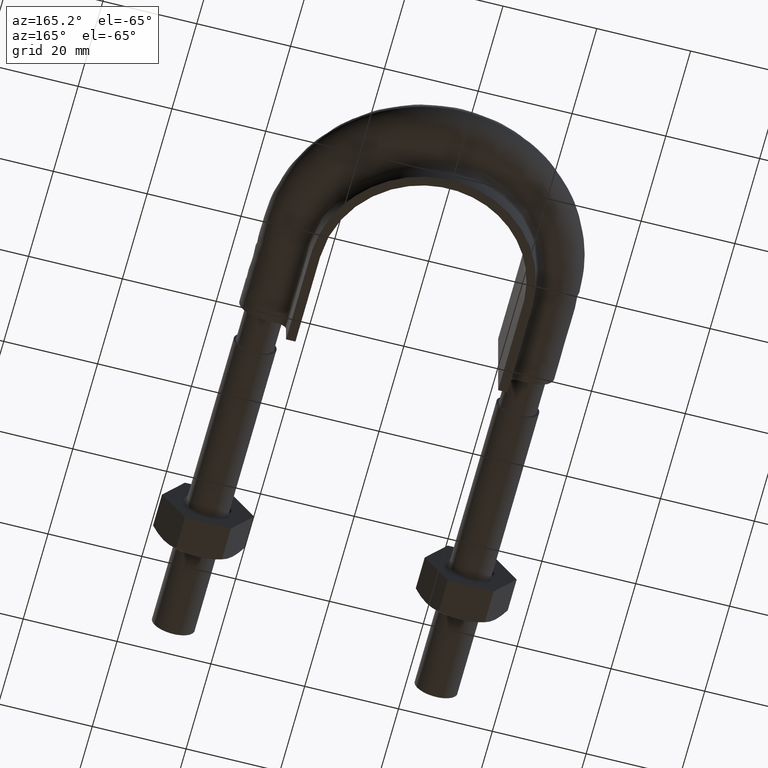
[diagram: clean part render]
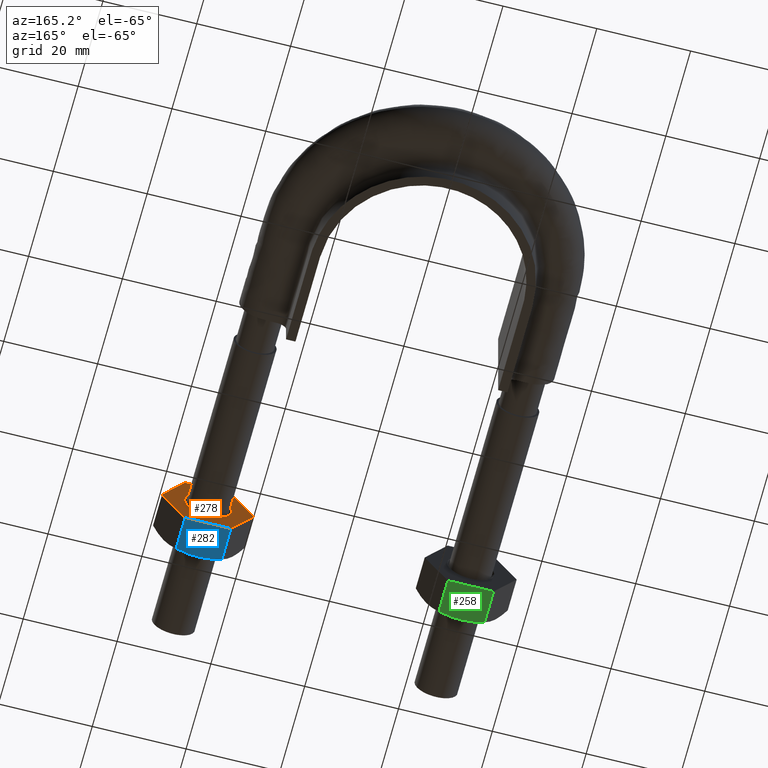
[diagram: same view with three faces highlighted in distinct colors, each labeled with its STEP entity id]
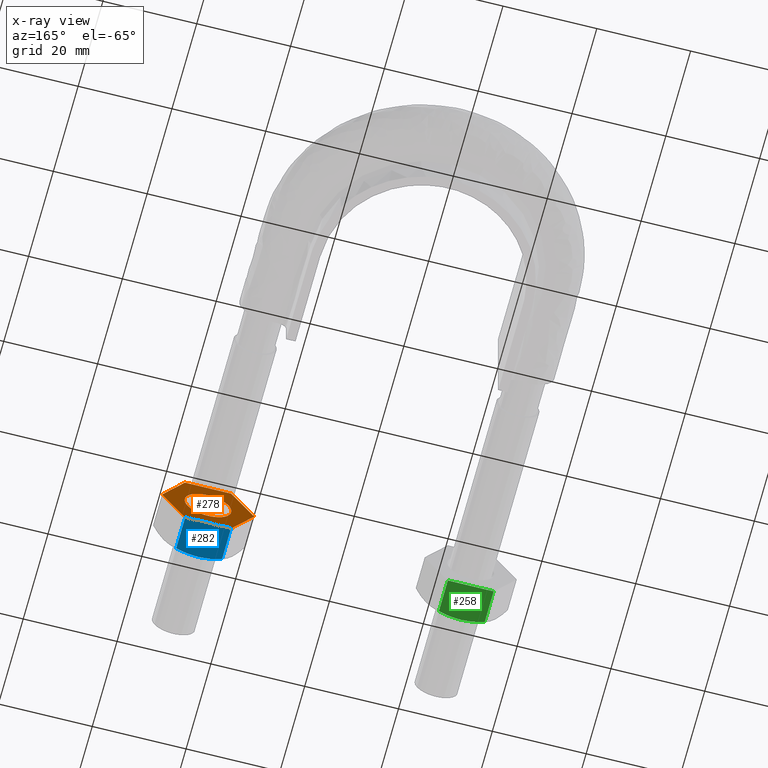
[diagram: x-ray of the same camera — body ghosted, the three highlighted faces saturated]
A machine part, auxiliary view with three faces highlighted in distinct colors.
The next image is the same camera in x-ray (body ghosted, the three faces saturated) — at least one of them is partly hidden behind the body in this view.
Their STEP definitions:

[orange] entity #278 — the highlighted planar face has unit normal (-0, -1, -0).
#278 = ADVANCED_FACE( '', ( #430, #431 ), #432, .F. );
#430 = FACE_OUTER_BOUND( '', #1427, .T. );
#431 = FACE_BOUND( '', #1428, .T. );
#432 = PLANE( '', #1429 );
#1427 = EDGE_LOOP( '', ( #1872, #1873, #1874, #1875, #1876, #1877, #1878, #1879, #1880, #1881, #1882, #1883 ) );
#1428 = EDGE_LOOP( '', ( #1884 ) );
#1429 = AXIS2_PLACEMENT_3D( '', #1885, #1886, #1887 );
#1872 = ORIENTED_EDGE( '', *, *, #2124, .T. );
#1873 = ORIENTED_EDGE( '', *, *, #2125, .T. );
#1874 = ORIENTED_EDGE( '', *, *, #2126, .T. );
#1875 = ORIENTED_EDGE( '', *, *, #2127, .T. );
#1876 = ORIENTED_EDGE( '', *, *, #2128, .T. );
#1877 = ORIENTED_EDGE( '', *, *, #2118, .T. );
#1878 = ORIENTED_EDGE( '', *, *, #2114, .T. );
#1879 = ORIENTED_EDGE( '', *, *, #2129, .T. );
#1880 = ORIENTED_EDGE( '', *, *, #2130, .T. );
#1881 = ORIENTED_EDGE( '', *, *, #2110, .T. );
#1882 = ORIENTED_EDGE( '', *, *, #2131, .T. );
#1883 = ORIENTED_EDGE( '', *, *, #2132, .T. );
#1884 = ORIENTED_EDGE( '', *, *, #2122, .F. );
#1885 = CARTESIAN_POINT( '', ( 32.8999999999998, 27.9999999999984, 8.48704895708538 ) );
#1886 = DIRECTION( '', ( -2.44921270764475E-016, -1.00000000000000, -6.12303176911189E-017 ) );
#1887 = DIRECTION( '', ( -1.00000000000000, 2.44921270764475E-016, 0.000000000000000 ) );
#2110 = EDGE_CURVE( '', #2334, #2332, #2335, .T. );
#2114 = EDGE_CURVE( '', #2342, #2340, #2343, .F. );
#2118 = EDGE_CURVE( '', #2349, #2342, #2350, .T. );
#2122 = EDGE_CURVE( '', #2355, #2355, #2356, .F. );
#2124 = EDGE_CURVE( '', #2359, #2360, #2361, .F. );
#2125 = EDGE_CURVE( '', #2360, #2362, #2363, .T. );
#2126 = EDGE_CURVE( '', #2362, #2364, #2365, .F. );
#2127 = EDGE_CURVE( '', #2364, #2366, #2367, .T. );
#2128 = EDGE_CURVE( '', #2366, #2349, #2368, .F. );
#2129 = EDGE_CURVE( '', #2340, #2369, #2370, .T. );
#2130 = EDGE_CURVE( '', #2369, #2334, #2371, .F. );
#2131 = EDGE_CURVE( '', #2332, #2372, #2373, .F. );
#2132 = EDGE_CURVE( '', #2372, #2359, #2374, .T. );
#2332 = VERTEX_POINT( '', #2923 );
#2334 = VERTEX_POINT( '', #2926 );
#2335 = LINE( '', #2927, #2928 );
#2340 = VERTEX_POINT( '', #2934 );
#2342 = VERTEX_POINT( '', #2937 );
#2343 = CIRCLE( '', #2938, 9.80000000000000 );
#2349 = VERTEX_POINT( '', #2955 );
#2350 = LINE( '', #2956, #2957 );
#2355 = VERTEX_POINT( '', #2968 );
#2356 = CIRCLE( '', #2969, 4.99999999999980 );
#2359 = VERTEX_POINT( '', #2972 );
#2360 = VERTEX_POINT( '', #2973 );
#2361 = CIRCLE( '', #2974, 9.80000000000000 );
#2362 = VERTEX_POINT( '', #2975 );
#2363 = LINE( '', #2976, #2977 );
#2364 = VERTEX_POINT( '', #2978 );
#2365 = CIRCLE( '', #2979, 9.80000000000000 );
#2366 = VERTEX_POINT( '', #2980 );
#2367 = LINE( '', #2981, #2982 );
#2368 = CIRCLE( '', #2983, 9.80000000000000 );
#2369 = VERTEX_POINT( '', #2984 );
#2370 = LINE( '', #2985, #2986 );
#2371 = CIRCLE( '', #2987, 9.80000000000000 );
#2372 = VERTEX_POINT( '', #2988 );
#2373 = CIRCLE( '', #2989, 9.80000000000000 );
#2374 = LINE( '', #2990, #2991 );
#2923 = CARTESIAN_POINT( '', ( 32.8774993593036, 27.9999999999984, 8.49999999999958 ) );
#2926 = CARTESIAN_POINT( '', ( 23.1225006406964, 27.9999999999984, 8.49999999999958 ) );
#2927 = CARTESIAN_POINT( '', ( 32.8999999999998, 27.9999999999984, 8.49999999999958 ) );
#2928 = VECTOR( '', #3211, 1000.00000000000 );
#2934 = CARTESIAN_POINT( '', ( 18.2000343881808, 27.9999999999984, 0.0259616479021500 ) );
#2937 = CARTESIAN_POINT( '', ( 18.2000343881808, 27.9999999999984, -0.0259616478954603 ) );
#2938 = AXIS2_PLACEMENT_3D( '', #3217, #3218, #3219 );
#2955 = CARTESIAN_POINT( '', ( 23.0775337474859, 27.9999999999984, -8.47403835209989 ) );
#2956 = CARTESIAN_POINT( '', ( 18.1887840678342, 27.9999999999984, -0.00647552145372973 ) );
#2957 = VECTOR( '', #3221, 1000.00000000000 );
#2968 = CARTESIAN_POINT( '', ( 32.9999999999998, 27.9999999999984, 1.97964474674123E-015 ) );
#2969 = AXIS2_PLACEMENT_3D( '', #3226, #3227, #3228 );
#2972 = CARTESIAN_POINT( '', ( 37.7999656118192, 27.9999999999984, 0.0259616478954763 ) );
#2973 = CARTESIAN_POINT( '', ( 37.7999656118192, 27.9999999999984, -0.0259616479023153 ) );
#2974 = AXIS2_PLACEMENT_3D( '', #3232, #3233, #3234 );
#2975 = CARTESIAN_POINT( '', ( 32.9224662525156, 27.9999999999984, -8.47403835209900 ) );
#2976 = CARTESIAN_POINT( '', ( 40.2612159321672, 27.9999999999984, 4.23704895708474 ) );
#2977 = VECTOR( '', #3235, 1000.00000000000 );
#2978 = CARTESIAN_POINT( '', ( 32.8774993593036, 27.9999999999984, -8.49999999999957 ) );
#2979 = AXIS2_PLACEMENT_3D( '', #3236, #3237, #3238 );
#2980 = CARTESIAN_POINT( '', ( 23.1225006406964, 27.9999999999984, -8.49999999999957 ) );
#2981 = CARTESIAN_POINT( '', ( 32.8999999999998, 27.9999999999984, -8.49999999999957 ) );
#2982 = VECTOR( '', #3239, 1000.00000000000 );
#2983 = AXIS2_PLACEMENT_3D( '', #3240, #3241, #3242 );
#2984 = CARTESIAN_POINT( '', ( 23.0775337474845, 27.9999999999984, 8.47403835209908 ) );
#2985 = CARTESIAN_POINT( '', ( 25.5387840678324, 27.9999999999984, 12.7370489570860 ) );
#2986 = VECTOR( '', #3243, 1000.00000000000 );
#2987 = AXIS2_PLACEMENT_3D( '', #3244, #3245, #3246 );
#2988 = CARTESIAN_POINT( '', ( 32.9224662525141, 27.9999999999984, 8.47403835209988 ) );
#2989 = AXIS2_PLACEMENT_3D( '', #3247, #3248, #3249 );
#2990 = CARTESIAN_POINT( '', ( 32.9112159321675, 27.9999999999984, 8.49352447854162 ) );
#2991 = VECTOR( '', #3250, 1000.00000000000 );
#3211 = DIRECTION( '', ( 1.00000000000000, -2.44921270764475E-016, -5.70504206655789E-027 ) );
#3217 = CARTESIAN_POINT( '', ( 28.0000000000000, 27.9999999999984, 1.97964474674123E-015 ) );
#3218 = DIRECTION( '', ( -2.44921270764475E-016, -1.00000000000000, -6.12303176911189E-017 ) );
#3219 = DIRECTION( '', ( 1.00000000000000, -2.44921270764475E-016, 0.000000000000000 ) );
#3221 = DIRECTION( '', ( -0.499999999999850, 6.94336247798948E-017, 0.866025403784525 ) );
#3226 = CARTESIAN_POINT( '', ( 28.0000000000000, 27.9999999999984, 1.97964474674123E-015 ) );
#3227 = DIRECTION( '', ( -2.44921270764475E-016, -1.00000000000000, -6.12303176911189E-017 ) );
#3228 = DIRECTION( '', ( 1.00000000000000, -2.44921270764475E-016, 0.000000000000000 ) );
#3232 = CARTESIAN_POINT( '', ( 28.0000000000000, 27.9999999999984, 1.97964474674123E-015 ) );
#3233 = DIRECTION( '', ( -2.44921270764475E-016, -1.00000000000000, -6.12303176911189E-017 ) );
#3234 = DIRECTION( '', ( 1.00000000000000, -2.44921270764475E-016, 0.000000000000000 ) );
#3235 = DIRECTION( '', ( -0.500000000000075, 1.75487645984554E-016, -0.866025403784396 ) );
#3236 = CARTESIAN_POINT( '', ( 28.0000000000000, 27.9999999999984, 1.97964474674123E-015 ) );
#3237 = DIRECTION( '', ( -2.44921270764475E-016, -1.00000000000000, -6.12303176911189E-017 ) );
#3238 = DIRECTION( '', ( 1.00000000000000, -2.44921270764475E-016, 0.000000000000000 ) );
#3239 = DIRECTION( '', ( -1.00000000000000, 2.44921270764475E-016, 1.49966072178720E-032 ) );
#3240 = CARTESIAN_POINT( '', ( 28.0000000000000, 27.9999999999984, 1.97964474674123E-015 ) );
#3241 = DIRECTION( '', ( -2.44921270764475E-016, -1.00000000000000, -6.12303176911189E-017 ) );
#3242 = DIRECTION( '', ( 1.00000000000000, -2.44921270764475E-016, 0.000000000000000 ) );
#3243 = DIRECTION( '', ( 0.500000000000075, -1.75487645984554E-016, 0.866025403784396 ) );
#3244 = CARTESIAN_POINT( '', ( 28.0000000000000, 27.9999999999984, 1.97964474674123E-015 ) );
#3245 = DIRECTION( '', ( -2.44921270764475E-016, -1.00000000000000, -6.12303176911189E-017 ) );
#3246 = DIRECTION( '', ( 1.00000000000000, -2.44921270764475E-016, 0.000000000000000 ) );
#3247 = CARTESIAN_POINT( '', ( 28.0000000000000, 27.9999999999984, 1.97964474674123E-015 ) );
#3248 = DIRECTION( '', ( -2.44921270764475E-016, -1.00000000000000, -6.12303176911189E-017 ) );
#3249 = DIRECTION( '', ( 1.00000000000000, -2.44921270764475E-016, 0.000000000000000 ) );
#3250 = DIRECTION( '', ( 0.499999999999850, -6.94336247798948E-017, -0.866025403784525 ) );

[blue] entity #282 — the highlighted planar face has unit normal (-0, -0, 1).
#282 = ADVANCED_FACE( '', ( #439 ), #440, .F. );
#439 = FACE_OUTER_BOUND( '', #1436, .T. );
#440 = PLANE( '', #1437 );
#1436 = EDGE_LOOP( '', ( #1909, #1910, #1911, #1912, #1913 ) );
#1437 = AXIS2_PLACEMENT_3D( '', #1914, #1915, #1916 );
#1909 = ORIENTED_EDGE( '', *, *, #2106, .F. );
#1910 = ORIENTED_EDGE( '', *, *, #2138, .F. );
#1911 = ORIENTED_EDGE( '', *, *, #2142, .F. );
#1912 = ORIENTED_EDGE( '', *, *, #2127, .F. );
#1913 = ORIENTED_EDGE( '', *, *, #2143, .F. );
#1914 = CARTESIAN_POINT( '', ( 32.9074772881116, 27.9999999999984, -8.49999999999957 ) );
#1915 = DIRECTION( '', ( -3.49320619929513E-043, -6.12303176911189E-017, 1.00000000000000 ) );
#1916 = DIRECTION( '', ( 1.00000000000000, -5.70502706995067E-027, 3.98272977783113E-059 ) );
#2106 = EDGE_CURVE( '', #2324, #2320, #2326, .T. );
#2127 = EDGE_CURVE( '', #2364, #2366, #2367, .T. );
#2138 = EDGE_CURVE( '', #2381, #2324, #2383, .T. );
#2142 = EDGE_CURVE( '', #2366, #2381, #2389, .T. );
#2143 = EDGE_CURVE( '', #2320, #2364, #2390, .F. );
#2320 = VERTEX_POINT( '', #2891 );
#2324 = VERTEX_POINT( '', #2900 );
#2326 = B_SPLINE_CURVE_WITH_KNOTS( '', 3, ( #2902, #2903, #2904, #2905, #2906, #2907 ), .UNSPECIFIED., .F., .F., ( 4, 2, 4 ), ( 1.76907777093865E-017, 0.00246745482903619, 0.00493490965807237 ), .UNSPECIFIED. );
#2364 = VERTEX_POINT( '', #2978 );
#2366 = VERTEX_POINT( '', #2980 );
#2367 = LINE( '', #2981, #2982 );
#2381 = VERTEX_POINT( '', #3000 );
#2383 = B_SPLINE_CURVE_WITH_KNOTS( '', 3, ( #3002, #3003, #3004, #3005, #3006, #3007 ), .UNSPECIFIED., .F., .F., ( 4, 2, 4 ), ( 5.05397327727756E-016, 0.00246745482903618, 0.00493490965807186 ), .UNSPECIFIED. );
#2389 = LINE( '', #3018, #3019 );
#2390 = LINE( '', #3020, #3021 );
#2891 = CARTESIAN_POINT( '', ( 32.8774993593031, 20.7505553499464, -8.49999999999957 ) );
#2900 = CARTESIAN_POINT( '', ( 28.0000000000000, 19.9999999999999, -8.49999999999979 ) );
#2902 = CARTESIAN_POINT( '', ( 28.0000000000000, 19.9999999999998, -8.49999999999957 ) );
#2903 = CARTESIAN_POINT( '', ( 28.8321659501908, 19.9999999999998, -8.49999999999957 ) );
#2904 = CARTESIAN_POINT( '', ( 29.6533062476858, 20.0716504305288, -8.49999999999957 ) );
#2905 = CARTESIAN_POINT( '', ( 31.2774431756630, 20.3328582843704, -8.49999999999957 ) );
#2906 = CARTESIAN_POINT( '', ( 32.0805717066770, 20.5215585493654, -8.49999999999957 ) );
#2907 = CARTESIAN_POINT( '', ( 32.8774993593026, 20.7505553499462, -8.49999999999957 ) );
#2978 = CARTESIAN_POINT( '', ( 32.8774993593036, 27.9999999999984, -8.49999999999957 ) );
#2980 = CARTESIAN_POINT( '', ( 23.1225006406964, 27.9999999999984, -8.49999999999957 ) );
#2981 = CARTESIAN_POINT( '', ( 32.8999999999998, 27.9999999999984, -8.49999999999957 ) );
#2982 = VECTOR( '', #3239, 1000.00000000000 );
#3000 = CARTESIAN_POINT( '', ( 23.1225006406969, 20.7505553499464, -8.49999999999957 ) );
#3002 = CARTESIAN_POINT( '', ( 23.1225006406974, 20.7505553499462, -8.49999999999957 ) );
#3003 = CARTESIAN_POINT( '', ( 23.9194282933229, 20.5215585493654, -8.49999999999957 ) );
#3004 = CARTESIAN_POINT( '', ( 24.7225568243376, 20.3328582843703, -8.49999999999957 ) );
#3005 = CARTESIAN_POINT( '', ( 26.3466937523146, 20.0716504305288, -8.49999999999957 ) );
#3006 = CARTESIAN_POINT( '', ( 27.1678340498094, 19.9999999999998, -8.49999999999957 ) );
#3007 = CARTESIAN_POINT( '', ( 28.0000000000000, 19.9999999999998, -8.49999999999957 ) );
#3018 = CARTESIAN_POINT( '', ( 23.1225006406964, 27.9999999999984, -8.49999999999957 ) );
#3019 = VECTOR( '', #3268, 1000.00000000000 );
#3020 = CARTESIAN_POINT( '', ( 32.8774993593036, 27.9999999999984, -8.49999999999957 ) );
#3021 = VECTOR( '', #3269, 1000.00000000000 );
#3239 = DIRECTION( '', ( -1.00000000000000, 2.44921270764475E-016, 1.49966072178720E-032 ) );
#3268 = DIRECTION( '', ( -2.44921270764476E-016, -1.00000000000000, -6.12303176911191E-017 ) );
#3269 = DIRECTION( '', ( -2.44921270764476E-016, -1.00000000000000, -6.12303176911191E-017 ) );

[green] entity #258 — the highlighted planar face has unit normal (-0, -0, 1).
#258 = ADVANCED_FACE( '', ( #386 ), #387, .F. );
#386 = FACE_OUTER_BOUND( '', #1383, .T. );
#387 = PLANE( '', #1384 );
#1383 = EDGE_LOOP( '', ( #1728, #1729, #1730, #1731, #1732 ) );
#1384 = AXIS2_PLACEMENT_3D( '', #1733, #1734, #1735 );
#1728 = ORIENTED_EDGE( '', *, *, #2054, .F. );
#1729 = ORIENTED_EDGE( '', *, *, #2082, .F. );
#1730 = ORIENTED_EDGE( '', *, *, #2087, .F. );
#1731 = ORIENTED_EDGE( '', *, *, #2070, .F. );
#1732 = ORIENTED_EDGE( '', *, *, #2088, .F. );
#1733 = CARTESIAN_POINT( '', ( -23.0925227118884, 27.9999999999984, -8.49999999999957 ) );
#1734 = DIRECTION( '', ( -3.49320619929513E-043, -6.12303176911189E-017, 1.00000000000000 ) );
#1735 = DIRECTION( '', ( 1.00000000000000, -5.70502706995067E-027, 3.98272977783113E-059 ) );
#2054 = EDGE_CURVE( '', #2238, #2234, #2240, .T. );
#2070 = EDGE_CURVE( '', #2268, #2270, #2271, .T. );
#2082 = EDGE_CURVE( '', #2288, #2238, #2290, .T. );
#2087 = EDGE_CURVE( '', #2270, #2288, #2299, .T. );
#2088 = EDGE_CURVE( '', #2234, #2268, #2300, .F. );
#2234 = VERTEX_POINT( '', #2727 );
#2238 = VERTEX_POINT( '', #2736 );
#2240 = B_SPLINE_CURVE_WITH_KNOTS( '', 3, ( #2738, #2739, #2740, #2741, #2742, #2743 ), .UNSPECIFIED., .F., .F., ( 4, 2, 4 ), ( 1.76907777093865E-017, 0.00246745482903620, 0.00493490965807238 ), .UNSPECIFIED. );
#2268 = VERTEX_POINT( '', #2791 );
#2270 = VERTEX_POINT( '', #2793 );
#2271 = LINE( '', #2794, #2795 );
#2288 = VERTEX_POINT( '', #2817 );
#2290 = B_SPLINE_CURVE_WITH_KNOTS( '', 3, ( #2819, #2820, #2821, #2822, #2823, #2824 ), .UNSPECIFIED., .F., .F., ( 4, 2, 4 ), ( 4.98539125167898E-016, 0.00246745482903618, 0.00493490965807185 ), .UNSPECIFIED. );
#2299 = LINE( '', #2843, #2844 );
#2300 = LINE( '', #2845, #2846 );
#2727 = CARTESIAN_POINT( '', ( -23.1225006406969, 20.7505553499464, -8.49999999999957 ) );
#2736 = CARTESIAN_POINT( '', ( -28.0000000000000, 19.9999999999999, -8.49999999999979 ) );
#2738 = CARTESIAN_POINT( '', ( -28.0000000000000, 19.9999999999998, -8.49999999999957 ) );
#2739 = CARTESIAN_POINT( '', ( -27.1678340498092, 19.9999999999998, -8.49999999999957 ) );
#2740 = CARTESIAN_POINT( '', ( -26.3466937523142, 20.0716504305288, -8.49999999999957 ) );
#2741 = CARTESIAN_POINT( '', ( -24.7225568243370, 20.3328582843705, -8.49999999999957 ) );
#2742 = CARTESIAN_POINT( '', ( -23.9194282933230, 20.5215585493654, -8.49999999999957 ) );
#2743 = CARTESIAN_POINT( '', ( -23.1225006406974, 20.7505553499462, -8.49999999999957 ) );
#2791 = CARTESIAN_POINT( '', ( -23.1225006406964, 27.9999999999984, -8.49999999999957 ) );
#2793 = CARTESIAN_POINT( '', ( -32.8774993593036, 27.9999999999984, -8.49999999999957 ) );
#2794 = CARTESIAN_POINT( '', ( -23.1000000000002, 27.9999999999984, -8.49999999999957 ) );
#2795 = VECTOR( '', #3152, 1000.00000000000 );
#2817 = CARTESIAN_POINT( '', ( -32.8774993593031, 20.7505553499464, -8.49999999999957 ) );
#2819 = CARTESIAN_POINT( '', ( -32.8774993593026, 20.7505553499462, -8.49999999999957 ) );
#2820 = CARTESIAN_POINT( '', ( -32.0805717066771, 20.5215585493654, -8.49999999999957 ) );
#2821 = CARTESIAN_POINT( '', ( -31.2774431756624, 20.3328582843703, -8.49999999999957 ) );
#2822 = CARTESIAN_POINT( '', ( -29.6533062476854, 20.0716504305288, -8.49999999999957 ) );
#2823 = CARTESIAN_POINT( '', ( -28.8321659501906, 19.9999999999998, -8.49999999999957 ) );
#2824 = CARTESIAN_POINT( '', ( -28.0000000000000, 19.9999999999998, -8.49999999999957 ) );
#2843 = CARTESIAN_POINT( '', ( -32.8774993593036, 27.9999999999984, -8.49999999999957 ) );
#2844 = VECTOR( '', #3182, 1000.00000000000 );
#2845 = CARTESIAN_POINT( '', ( -23.1225006406964, 27.9999999999984, -8.49999999999957 ) );
#2846 = VECTOR( '', #3183, 1000.00000000000 );
#3152 = DIRECTION( '', ( -1.00000000000000, 2.44921270764475E-016, 1.49966072178720E-032 ) );
#3182 = DIRECTION( '', ( -2.44921270764476E-016, -1.00000000000000, -6.12303176911191E-017 ) );
#3183 = DIRECTION( '', ( -2.44921270764476E-016, -1.00000000000000, -6.12303176911191E-017 ) );